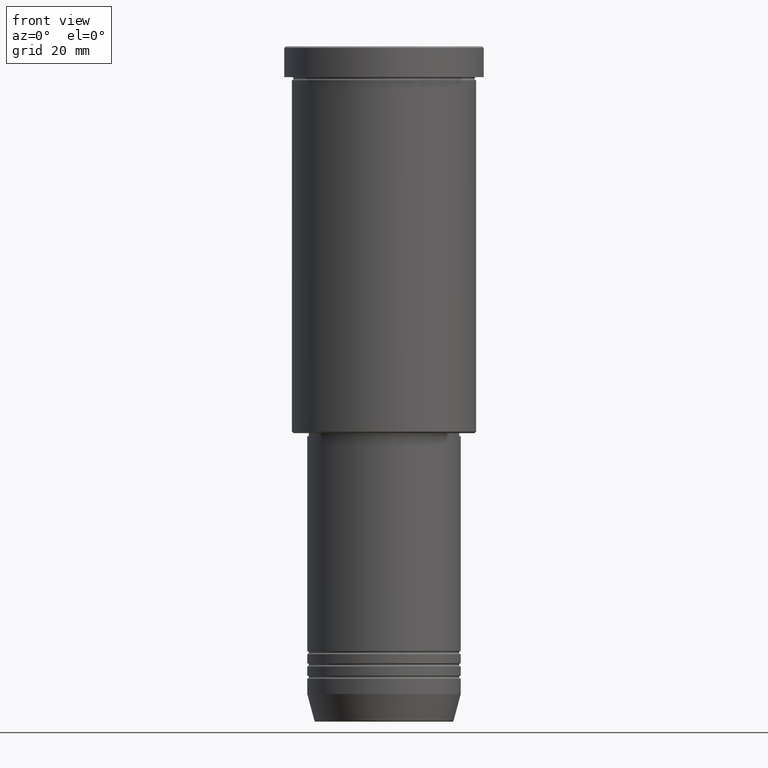
[diagram: clean part render]
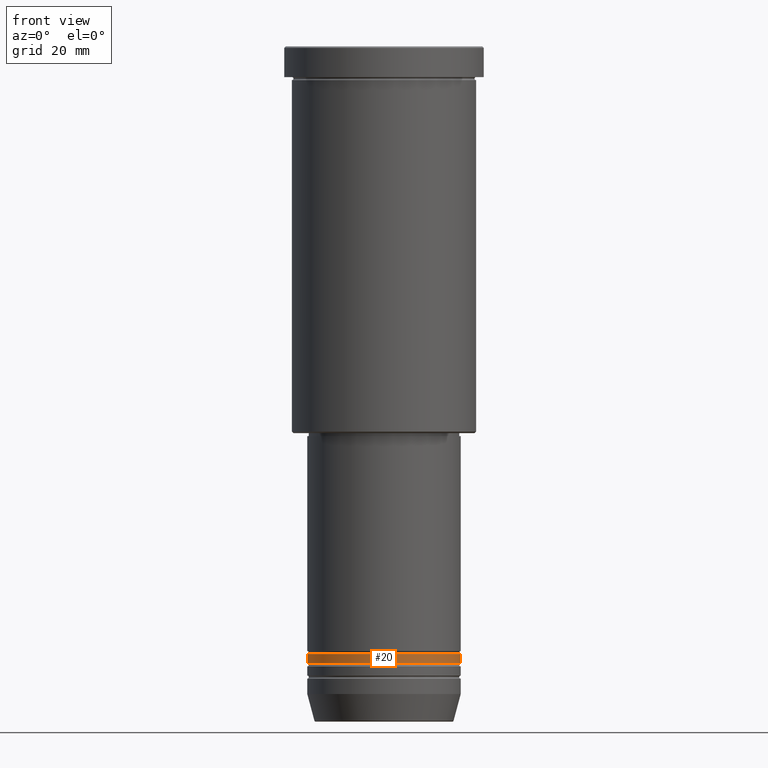
[diagram: same view with one face highlighted and labeled with its STEP entity id]
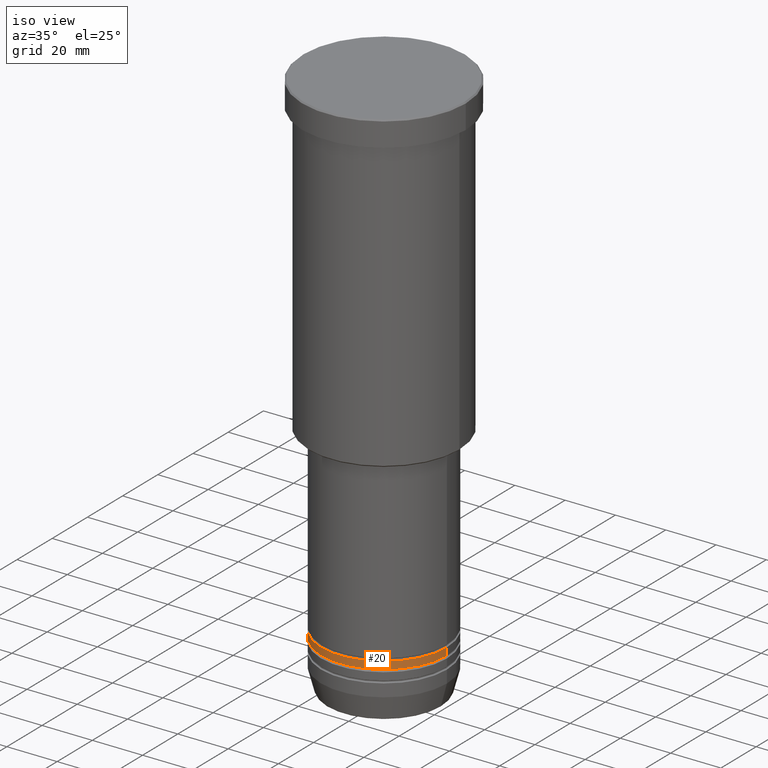
[diagram: same view with one face highlighted and labeled with its STEP entity id]
A machine part, front view. The second image highlights one B-rep face of the part: STEP entity #20.
A second angle (iso view) of the same face is appended — the face is thin or edge-on in the first view.
In plain terms, the highlighted cylindrical surface (partial cylindrical patch) has radius 25 mm, axis along (-0, -0, 1).
Its self-contained STEP definition (entity closure, byte-faithful):
#7 = VECTOR ( 'NONE', #969, 1000.000000000000000 ) ;
#20 = ADVANCED_FACE ( 'NONE', ( #268 ), #888, .T. ) ;
#33 = CARTESIAN_POINT ( 'NONE',  ( -25.00000000000000000, 3.061616997868383043E-15, -197.9999999999999716 ) ) ;
#80 = DIRECTION ( 'NONE',  ( 1.000000000000000000, 0.000000000000000000, 0.000000000000000000 ) ) ;
#239 = VERTEX_POINT ( 'NONE', #379 ) ;
#250 = DIRECTION ( 'NONE',  ( 1.000000000000000000, 0.000000000000000000, 0.000000000000000000 ) ) ;
#268 = FACE_OUTER_BOUND ( 'NONE', #472, .T. ) ;
#314 = VERTEX_POINT ( 'NONE', #595 ) ;
#316 = EDGE_CURVE ( 'NONE', #239, #314, #685, .T. ) ;
#336 = CARTESIAN_POINT ( 'NONE',  ( -25.00000000000000000, 3.061616997868383043E-15, 0.000000000000000000 ) ) ;
#339 = ORIENTED_EDGE ( 'NONE', *, *, #930, .T. ) ;
#351 = VECTOR ( 'NONE', #1064, 1000.000000000000000 ) ;
#379 = CARTESIAN_POINT ( 'NONE',  ( 25.00000000000000355, 0.000000000000000000, -200.9999999999999716 ) ) ;
#410 = LINE ( 'NONE', #336, #351 ) ;
#472 = EDGE_LOOP ( 'NONE', ( #724, #339, #572, #709 ) ) ;
#572 = ORIENTED_EDGE ( 'NONE', *, *, #316, .T. ) ;
#583 = AXIS2_PLACEMENT_3D ( 'NONE', #892, #1181, #80 ) ;
#584 = AXIS2_PLACEMENT_3D ( 'NONE', #1107, #660, #250 ) ;
#595 = CARTESIAN_POINT ( 'NONE',  ( 25.00000000000000000, 0.000000000000000000, -197.9999999999999716 ) ) ;
#660 = DIRECTION ( 'NONE',  ( -0.000000000000000000, -0.000000000000000000, 1.000000000000000000 ) ) ;
#685 = LINE ( 'NONE', #772, #7 ) ;
#693 = CARTESIAN_POINT ( 'NONE',  ( -25.00000000000000711, 3.061616997868383831E-15, -200.9999999999999716 ) ) ;
#709 = ORIENTED_EDGE ( 'NONE', *, *, #951, .F. ) ;
#724 = ORIENTED_EDGE ( 'NONE', *, *, #790, .F. ) ;
#772 = CARTESIAN_POINT ( 'NONE',  ( 25.00000000000000000, 0.000000000000000000, 0.000000000000000000 ) ) ;
#790 = EDGE_CURVE ( 'NONE', #856, #1055, #410, .T. ) ;
#796 = DIRECTION ( 'NONE',  ( 1.000000000000000000, 0.000000000000000000, 0.000000000000000000 ) ) ;
#856 = VERTEX_POINT ( 'NONE', #693 ) ;
#888 = CYLINDRICAL_SURFACE ( 'NONE', #583, 25.00000000000000000 ) ;
#892 = CARTESIAN_POINT ( 'NONE',  ( 0.000000000000000000, 0.000000000000000000, 0.000000000000000000 ) ) ;
#917 = CIRCLE ( 'NONE', #1056, 25.00000000000000355 ) ;
#930 = EDGE_CURVE ( 'NONE', #856, #239, #917, .T. ) ;
#951 = EDGE_CURVE ( 'NONE', #1055, #314, #1097, .T. ) ;
#969 = DIRECTION ( 'NONE',  ( -0.000000000000000000, -0.000000000000000000, 1.000000000000000000 ) ) ;
#1055 = VERTEX_POINT ( 'NONE', #33 ) ;
#1056 = AXIS2_PLACEMENT_3D ( 'NONE', #1111, #1162, #796 ) ;
#1064 = DIRECTION ( 'NONE',  ( -0.000000000000000000, -0.000000000000000000, 1.000000000000000000 ) ) ;
#1097 = CIRCLE ( 'NONE', #584, 25.00000000000000000 ) ;
#1107 = CARTESIAN_POINT ( 'NONE',  ( 0.000000000000000000, 0.000000000000000000, -197.9999999999999716 ) ) ;
#1111 = CARTESIAN_POINT ( 'NONE',  ( 0.000000000000000000, 0.000000000000000000, -200.9999999999999716 ) ) ;
#1162 = DIRECTION ( 'NONE',  ( -0.000000000000000000, -0.000000000000000000, 1.000000000000000000 ) ) ;
#1181 = DIRECTION ( 'NONE',  ( -0.000000000000000000, -0.000000000000000000, 1.000000000000000000 ) ) ;